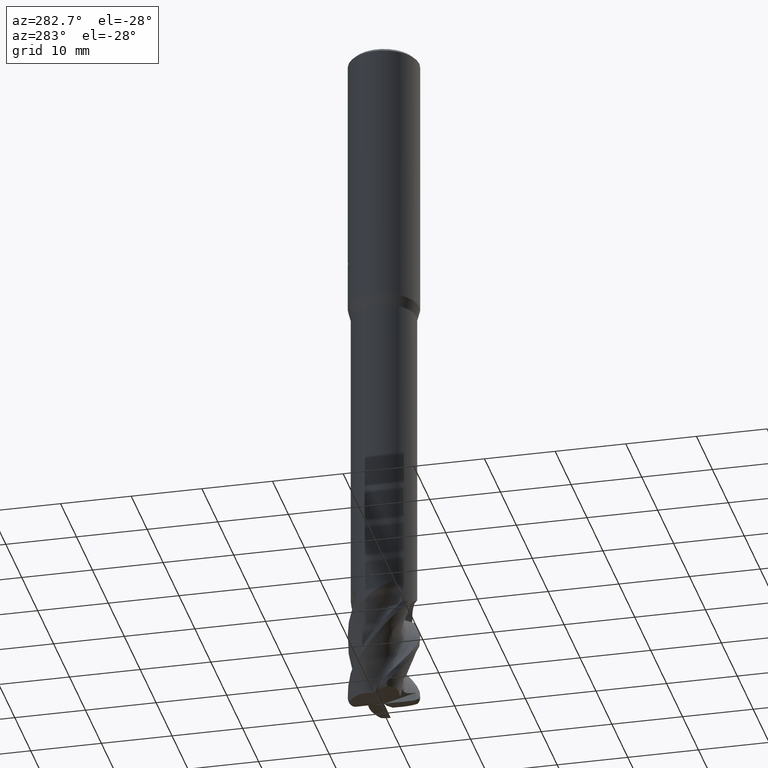
[diagram: clean part render]
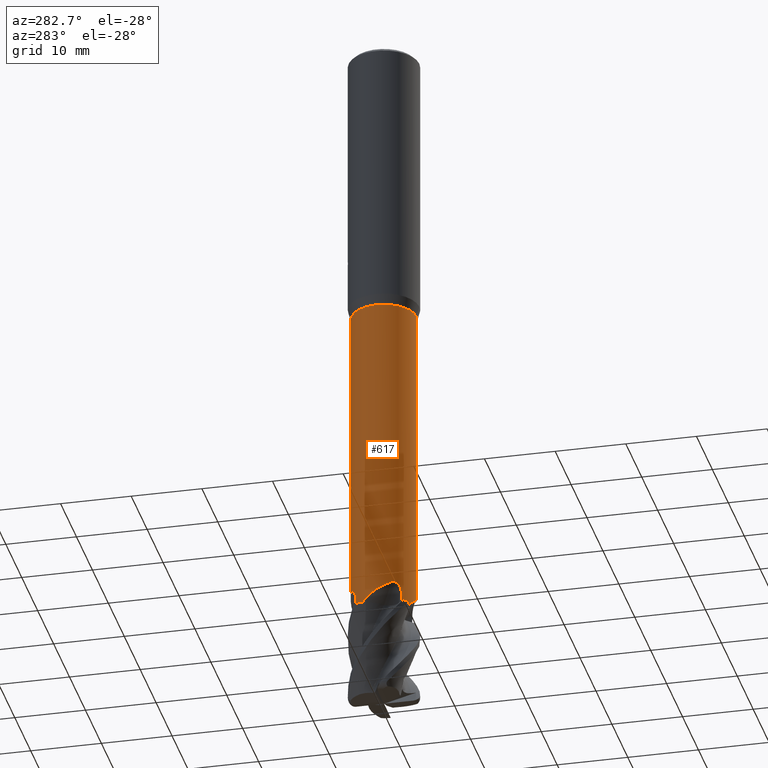
[diagram: same view with one face highlighted and labeled with its STEP entity id]
A machine part, auxiliary view. The second image highlights one B-rep face of the part: STEP entity #617.
In plain terms, the highlighted cylindrical surface (edge-blend (fillet) strip) has radius 4.5999 mm, axis along (-0, -0, 1).
Its self-contained STEP definition (entity closure, byte-faithful):
#579=EDGE_CURVE('',#1073,#1139,#1609,.T.);
#617=ADVANCED_FACE('',(#1651),#1652,.T.);
#625=EDGE_CURVE('',#795,#1455,#1660,.T.);
#681=EDGE_CURVE('',#967,#1325,#1719,.T.);
#751=VERTEX_POINT('',#1801);
#769=EDGE_CURVE('',#1051,#795,#1821,.T.);
#783=EDGE_CURVE('',#1455,#1009,#1836,.T.);
#795=VERTEX_POINT('',#1848);
#865=EDGE_CURVE('',#1009,#1355,#1922,.T.);
#923=EDGE_CURVE('',#1139,#751,#1984,.T.);
#929=EDGE_CURVE('',#1051,#751,#1990,.T.);
#967=VERTEX_POINT('',#2031);
#1009=VERTEX_POINT('',#2076);
#1051=VERTEX_POINT('',#2121);
#1073=VERTEX_POINT('',#2147);
#1139=VERTEX_POINT('',#2221);
#1145=VERTEX_POINT('',#2228);
#1191=VERTEX_POINT('',#2282);
#1325=VERTEX_POINT('',#2433);
#1333=EDGE_CURVE('',#1145,#1325,#2441,.T.);
#1355=VERTEX_POINT('',#2464);
#1371=EDGE_CURVE('',#967,#1073,#2480,.T.);
#1399=EDGE_CURVE('',#1191,#1145,#2510,.T.);
#1453=EDGE_CURVE('',#1355,#1191,#2569,.T.);
#1455=VERTEX_POINT('',#2571);
#1609=B_SPLINE_CURVE_WITH_KNOTS('',3,(#3052,#3053,#3054,#3055,#3056,#3057,#3058,#3059,#3060,#3061,#3062,#3063,#3064,#3065),.UNSPECIFIED.,.F.,.F.,(4,2,2,2,2,2,4),(0.0,0.3655240808487,0.678645118866952,1.01233447023117,1.4687726673543,2.00866642150942,2.57798926064207),.UNSPECIFIED.);
#1651=FACE_OUTER_BOUND('',#3346,.T.);
#1652=CYLINDRICAL_SURFACE('',#3347,4.59995);
#1660=LINE('',#3360,#3361);
#1719=CIRCLE('',#3896,4.59995);
#1801=CARTESIAN_POINT('',(-3.27442561442691,-3.23073937328361,-86.0));
#1821=B_SPLINE_CURVE_WITH_KNOTS('',3,(#4580,#4581,#4582,#4583,#4584,#4585,#4586,#4587),.UNSPECIFIED.,.F.,.F.,(4,2,2,4),(0.0,1.70493436532048,3.59896437571343,5.17647264823394),.UNSPECIFIED.);
#1836=CIRCLE('',#4927,4.59995);
#1848=CARTESIAN_POINT('',(3.82072561758872E-012,-4.59995,-84.3835604199532));
#1922=LINE('',#5705,#5706);
#1984=B_SPLINE_CURVE_WITH_KNOTS('',3,(#6411,#6412,#6413,#6414),.UNSPECIFIED.,.F.,.F.,(4,4),(0.0,1.12205344352763),.UNSPECIFIED.);
#1990=CIRCLE('',#6471,4.59995);
#2031=CARTESIAN_POINT('',(-4.06854271914353,2.14627587812103,-86.0));
#2076=CARTESIAN_POINT('',(0.0,4.59995,-40.0));
#2121=CARTESIAN_POINT('',(-2.14627587812101,-4.06854271914354,-86.0));
#2147=CARTESIAN_POINT('',(-4.14506773744616,-1.99448074808532,-83.2942715364873));
#2221=CARTESIAN_POINT('',(-3.28930734444467,-3.21558660220532,-84.878123541261));
#2228=CARTESIAN_POINT('',(-3.21558660220532,3.28930734444467,-84.8781235412611));
#2282=CARTESIAN_POINT('',(-1.99448074808532,4.14506773744616,-83.2942715364874));
#2433=CARTESIAN_POINT('',(-3.23073937328361,3.27442561442691,-86.0));
#2441=B_SPLINE_CURVE_WITH_KNOTS('',3,(#9052,#9053,#9054,#9055),.UNSPECIFIED.,.F.,.F.,(4,4),(0.0,1.12205344352799),.UNSPECIFIED.);
#2464=CARTESIAN_POINT('',(-3.81600716973406E-012,4.59995,-84.3835604199532));
#2480=B_SPLINE_CURVE_WITH_KNOTS('',3,(#9158,#9159,#9160,#9161,#9162,#9163,#9164,#9165),.UNSPECIFIED.,.F.,.F.,(4,2,2,4),(0.0,1.70493436532061,3.59896437571366,5.17647264823407),.UNSPECIFIED.);
#2510=B_SPLINE_CURVE_WITH_KNOTS('',3,(#9508,#9509,#9510,#9511,#9512,#9513,#9514,#9515,#9516,#9517,#9518,#9519,#9520,#9521),.UNSPECIFIED.,.F.,.F.,(4,2,2,2,2,2,4),(0.0,0.365524080848918,0.67864511886743,1.01233447023192,1.46877266735544,2.00866642151104,2.57798926064409),.UNSPECIFIED.);
#2569=B_SPLINE_CURVE_WITH_KNOTS('',3,(#10123,#10124,#10125,#10126,#10127,#10128,#10129,#10130),.UNSPECIFIED.,.F.,.F.,(4,2,2,4),(0.0,1.70493436532045,3.59896437571342,5.17647264823415),.UNSPECIFIED.);
#2571=CARTESIAN_POINT('',(5.63312799726525E-016,-4.59995,-40.0));
#3052=CARTESIAN_POINT('',(-4.14506773744339,-1.99448074809107,-83.2942715367483));
#3053=CARTESIAN_POINT('',(-4.09632706450129,-2.09577698326755,-83.2472743387913));
#3054=CARTESIAN_POINT('',(-4.04127333679035,-2.20055735674985,-83.2189270971694));
#3055=CARTESIAN_POINT('',(-3.92803991636425,-2.39601859889025,-83.2164349155622));
#3056=CARTESIAN_POINT('',(-3.87418319370222,-2.48186577483918,-83.2352070784562));
#3057=CARTESIAN_POINT('',(-3.76253993627581,-2.64830580737834,-83.3137566058935));
#3058=CARTESIAN_POINT('',(-3.70753317033121,-2.72409449648218,-83.3741836324019));
#3059=CARTESIAN_POINT('',(-3.58776179296999,-2.88106136816528,-83.5482180583246));
#3060=CARTESIAN_POINT('',(-3.52734960794906,-2.95348554413679,-83.6724596358744));
#3061=CARTESIAN_POINT('',(-3.41918188144711,-3.07843387717101,-83.9614944184438));
#3062=CARTESIAN_POINT('',(-3.37391772971294,-3.12702287041988,-84.1341842693754));
#3063=CARTESIAN_POINT('',(-3.30997128247274,-3.19466944900749,-84.4944769243255));
#3064=CARTESIAN_POINT('',(-3.29201988903747,-3.21281186964317,-84.6867159258004));
#3065=CARTESIAN_POINT('',(-3.28930734451459,-3.21558660213381,-84.8781235412616));
#3346=EDGE_LOOP('',(#10645,#10646,#10647,#10648,#10649,#10650,#10651,#10652,#10653,#10654,#10655,#10656));
#3347=AXIS2_PLACEMENT_3D('',#10657,#10658,#10659);
#3360=CARTESIAN_POINT('',(5.63312799726528E-016,-4.59995,-63.0));
#3361=VECTOR('',#10662,1.0);
#3896=AXIS2_PLACEMENT_3D('',#10705,#10706,#10707);
#4580=CARTESIAN_POINT('',(-2.14627587812429,-4.06854271914181,-86.0000000000036));
#4581=CARTESIAN_POINT('',(-1.78538811264533,-4.25892162363591,-85.6044070229971));
#4582=CARTESIAN_POINT('',(-1.37852316779276,-4.41346080657947,-85.2637920657293));
#4583=CARTESIAN_POINT('',(-0.40967752157722,-4.61112768612602,-84.6005266969046));
#4584=CARTESIAN_POINT('',(0.132498817145001,-4.63134353462983,-84.304480920662));
#4585=CARTESIAN_POINT('',(1.13745867430591,-4.4809531994899,-83.7701923017453));
#4586=CARTESIAN_POINT('',(1.58024574942747,-4.34438504233423,-83.5402028533197));
#4587=CARTESIAN_POINT('',(1.99448074808533,-4.14506773744617,-83.2942715364873));
#4927=AXIS2_PLACEMENT_3D('',#10862,#10863,#10864);
#5705=CARTESIAN_POINT('',(-5.63312799726521E-016,4.59995,-63.0));
#5706=VECTOR('',#10915,1.0);
#6411=CARTESIAN_POINT('',(-3.28930734444471,-3.21558660220531,-84.8781235412609));
#6412=CARTESIAN_POINT('',(-3.2840080173757,-3.22100742198257,-85.2520645224542));
#6413=CARTESIAN_POINT('',(-3.2790416117726,-3.22606095815985,-85.6260394030812));
#6414=CARTESIAN_POINT('',(-3.27442561442686,-3.23073937328365,-86.0000000000036));
#6471=AXIS2_PLACEMENT_3D('',#10950,#10951,#10952);
#9052=CARTESIAN_POINT('',(-3.2155866022053,3.28930734444469,-84.878123541261));
#9053=CARTESIAN_POINT('',(-3.22100742198256,3.28400801737568,-85.2520645224544));
#9054=CARTESIAN_POINT('',(-3.22606095815985,3.2790416117726,-85.6260394030814));
#9055=CARTESIAN_POINT('',(-3.23073937328365,3.27442561442686,-86.0000000000036));
#9158=CARTESIAN_POINT('',(-4.06854271914179,2.14627587812432,-86.0000000000036));
#9159=CARTESIAN_POINT('',(-4.25892162363591,1.78538811264532,-85.6044070229971));
#9160=CARTESIAN_POINT('',(-4.41346080657946,1.37852316779276,-85.2637920657293));
#9161=CARTESIAN_POINT('',(-4.61112768612601,0.409677521577256,-84.6005266969046));
#9162=CARTESIAN_POINT('',(-4.63134353462982,-0.132498817144979,-84.304480920662));
#9163=CARTESIAN_POINT('',(-4.48095319948991,-1.13745867430581,-83.7701923017453));
#9164=CARTESIAN_POINT('',(-4.34438504233426,-1.58024574942742,-83.5402028533197));
#9165=CARTESIAN_POINT('',(-4.14506773744617,-1.99448074808533,-83.2942715364873));
#9508=CARTESIAN_POINT('',(-1.99448074809107,4.1450677374434,-83.2942715367484));
#9509=CARTESIAN_POINT('',(-2.09577698326762,4.09632706450126,-83.2472743387914));
#9510=CARTESIAN_POINT('',(-2.20055735674988,4.04127333679034,-83.2189270971694));
#9511=CARTESIAN_POINT('',(-2.39601859889025,3.92803991636425,-83.2164349155622));
#9512=CARTESIAN_POINT('',(-2.48186577483918,3.87418319370222,-83.2352070784563));
#9513=CARTESIAN_POINT('',(-2.64830580737834,3.76253993627581,-83.3137566058936));
#9514=CARTESIAN_POINT('',(-2.72409449648218,3.70753317033121,-83.3741836324019));
#9515=CARTESIAN_POINT('',(-2.88106136816528,3.58776179296999,-83.5482180583247));
#9516=CARTESIAN_POINT('',(-2.95348554413679,3.52734960794906,-83.6724596358745));
#9517=CARTESIAN_POINT('',(-3.078433877171,3.41918188144712,-83.9614944184439));
#9518=CARTESIAN_POINT('',(-3.12702287041988,3.37391772971295,-84.1341842693754));
#9519=CARTESIAN_POINT('',(-3.19466944900749,3.30997128247274,-84.4944769243256));
#9520=CARTESIAN_POINT('',(-3.21281186964317,3.29201988903748,-84.6867159258004));
#9521=CARTESIAN_POINT('',(-3.21558660213382,3.2893073445146,-84.8781235412616));
#10123=CARTESIAN_POINT('',(2.14627587812421,4.06854271914185,-86.0000000000035));
#10124=CARTESIAN_POINT('',(1.78538811264524,4.25892162363594,-85.604407022997));
#10125=CARTESIAN_POINT('',(1.37852316779266,4.41346080657951,-85.2637920657293));
#10126=CARTESIAN_POINT('',(0.409677521577045,4.61112768612605,-84.6005266969045));
#10127=CARTESIAN_POINT('',(-0.132498817145248,4.63134353462979,-84.3044809206619));
#10128=CARTESIAN_POINT('',(-1.137458674306,4.48095319948986,-83.7701923017453));
#10129=CARTESIAN_POINT('',(-1.58024574942752,4.3443850423342,-83.5402028533197));
#10130=CARTESIAN_POINT('',(-1.99448074808533,4.14506773744615,-83.2942715364873));
#10645=ORIENTED_EDGE('',*,*,#865,.T.);
#10646=ORIENTED_EDGE('',*,*,#1453,.T.);
#10647=ORIENTED_EDGE('',*,*,#1399,.T.);
#10648=ORIENTED_EDGE('',*,*,#1333,.T.);
#10649=ORIENTED_EDGE('',*,*,#681,.F.);
#10650=ORIENTED_EDGE('',*,*,#1371,.T.);
#10651=ORIENTED_EDGE('',*,*,#579,.T.);
#10652=ORIENTED_EDGE('',*,*,#923,.T.);
#10653=ORIENTED_EDGE('',*,*,#929,.F.);
#10654=ORIENTED_EDGE('',*,*,#769,.T.);
#10655=ORIENTED_EDGE('',*,*,#625,.T.);
#10656=ORIENTED_EDGE('',*,*,#783,.T.);
#10657=CARTESIAN_POINT('',(0.0,0.0,-63.0));
#10658=DIRECTION('',(-0.0,-0.0,1.0));
#10659=DIRECTION('',(0.0,1.0,0.0));
#10662=DIRECTION('',(-0.0,-0.0,1.0));
#10705=CARTESIAN_POINT('',(0.0,0.0,-86.0));
#10706=DIRECTION('',(0.0,0.0,-1.0));
#10707=DIRECTION('',(0.0,1.0,0.0));
#10862=CARTESIAN_POINT('',(0.0,0.0,-40.0));
#10863=DIRECTION('',(0.0,0.0,-1.0));
#10864=DIRECTION('',(0.0,1.0,0.0));
#10915=DIRECTION('',(0.0,0.0,-1.0));
#10950=CARTESIAN_POINT('',(0.0,0.0,-86.0));
#10951=DIRECTION('',(0.0,0.0,-1.0));
#10952=DIRECTION('',(0.0,1.0,0.0));